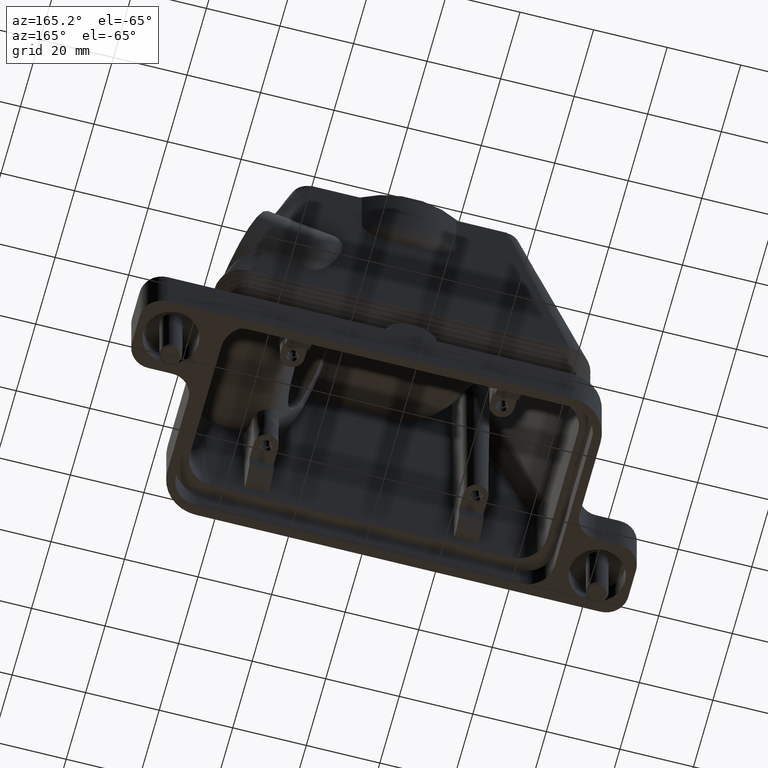
[diagram: clean part render]
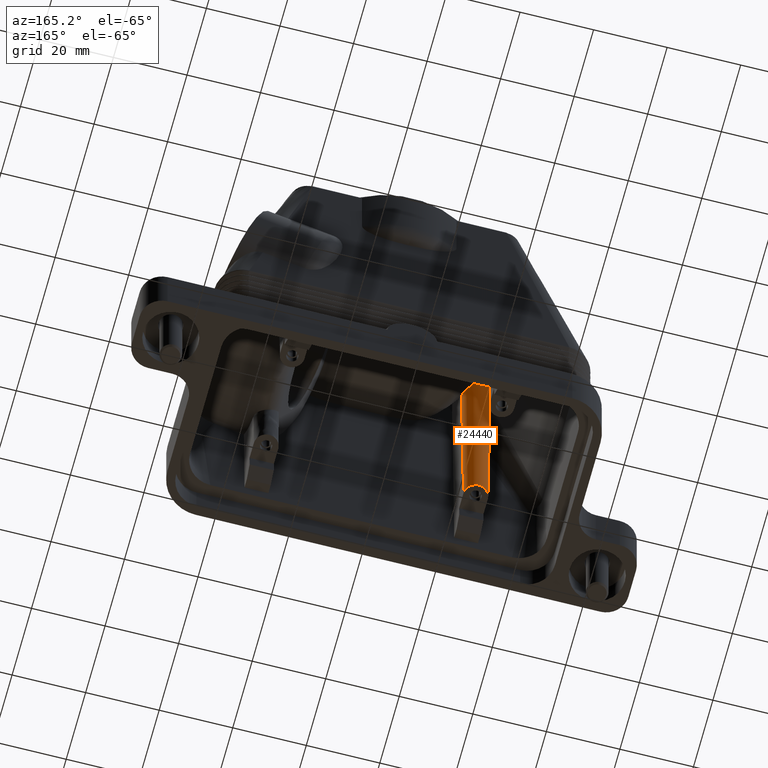
[diagram: same view with one face highlighted and labeled with its STEP entity id]
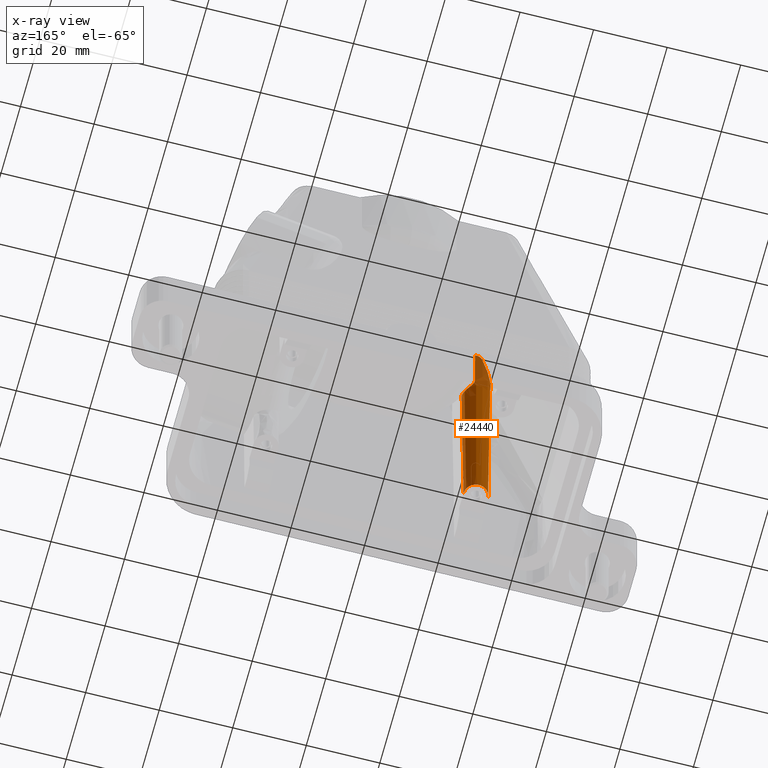
[diagram: x-ray of the same camera — body ghosted, the highlighted face saturated]
A machine part, auxiliary view. The second image highlights one B-rep face of the part: STEP entity #24440.
The next image is the same camera in x-ray: the body ghosted, the highlighted face saturated — about 12% of this face is hidden behind the body in this view.
In plain terms, the highlighted conical surface has half-angle 0.5 deg.
Its self-contained STEP definition (entity closure, byte-faithful):
#4811=CARTESIAN_POINT('',(-28.182178093102184,-9.517161097980543,97.425784668048621));
#4812=VERTEX_POINT('',#4811);
#4819=CARTESIAN_POINT('',(-27.339253843046620,-9.672910591317754,97.854749853687679));
#4820=VERTEX_POINT('',#4819);
#4830=CARTESIAN_POINT('',(-27.339253843046620,-9.672910591317754,97.854749853687679));
#4831=CARTESIAN_POINT('',(-27.433603181008660,-9.644572625008209,97.824272078642011));
#4832=CARTESIAN_POINT('',(-27.526090102079017,-9.620671139753370,97.789181397976620));
#4833=CARTESIAN_POINT('',(-27.800892895860642,-9.559380207145626,97.669478344377836));
#4834=CARTESIAN_POINT('',(-28.000992432428745,-9.530465131622529,97.557622558817542));
#4835=CARTESIAN_POINT('',(-28.182178093102184,-9.517161097980543,97.425784668048621));
#4836=B_SPLINE_CURVE_WITH_KNOTS('',3,(#4830,#4831,#4832,#4833,#4834,#4835),.UNSPECIFIED.,.F.,.U.,(4,2,4),(3.084516598273367,3.114259240925748,3.176299917802511),.UNSPECIFIED.);
#4837=EDGE_CURVE('',#4820,#4812,#4836,.T.);
#24140=CARTESIAN_POINT('',(-25.188911925464691,-13.500000000000000,18.999999999999996));
#24141=VERTEX_POINT('',#24140);
#24148=CARTESIAN_POINT('',(-24.662122134714242,-13.500000000000000,79.364131023995554));
#24149=VERTEX_POINT('',#24148);
#24150=CARTESIAN_POINT('',(-25.188911925464691,-13.500000000000000,18.999999999999996));
#24151=DIRECTION('',(0.008726535498374,0.0,0.999961923064171));
#24152=VECTOR('',#24151,60.366429592661362);
#24153=LINE('',#24150,#24152);
#24154=EDGE_CURVE('',#24141,#24149,#24153,.T.);
#24274=CARTESIAN_POINT('',(-31.811088074535313,-13.500000000000000,18.999999999999996));
#24275=VERTEX_POINT('',#24274);
#24282=CARTESIAN_POINT('',(-28.500000000000000,-13.500000000000000,18.999999999999996));
#24283=DIRECTION('',(0.0,0.0,1.0));
#24284=DIRECTION('',(1.0,0.0,0.0));
#24285=AXIS2_PLACEMENT_3D('',#24282,#24283,#24284);
#24286=CIRCLE('',#24285,3.311088074535312);
#24287=EDGE_CURVE('',#24141,#24275,#24286,.T.);
#24345=CARTESIAN_POINT('',(-32.398001384786241,-13.500000000000000,86.253603964578645));
#24346=VERTEX_POINT('',#24345);
#24353=CARTESIAN_POINT('',(-31.811088074535313,-13.500000000000000,18.999999999999996));
#24354=DIRECTION('',(-0.008726535498374,0.0,0.999961923064171));
#24355=VECTOR('',#24354,67.256164873252615);
#24356=LINE('',#24353,#24355);
#24357=EDGE_CURVE('',#24275,#24346,#24356,.T.);
#24381=CARTESIAN_POINT('',(-28.500000000000000,-13.500000000000000,12.0));
#24382=DIRECTION('',(0.0,0.0,1.0));
#24383=DIRECTION('',(1.0,0.0,0.0));
#24384=AXIS2_PLACEMENT_3D('',#24381,#24382,#24383);
#24385=CONICAL_SURFACE('',#24384,3.250000000000000,0.500000000000000);
#24386=ORIENTED_EDGE('',*,*,#24287,.T.);
#24387=ORIENTED_EDGE('',*,*,#24357,.T.);
#24388=CARTESIAN_POINT('',(-29.271578151614875,-9.593076188851722,95.922954170263296));
#24389=VERTEX_POINT('',#24388);
#24390=CARTESIAN_POINT('',(-28.391873351443820,-13.500000000000000,98.643690665637664));
#24391=DIRECTION('',(-0.951499144601332,0.0,0.307651390087764));
#24392=DIRECTION('',(-0.307651390087764,1.254607E-017,-0.951499144601332));
#24393=AXIS2_PLACEMENT_3D('',#24390,#24391,#24392);
#24394=ELLIPSE('',#24393,13.021647755921382,4.004668581468887);
#24395=EDGE_CURVE('',#24389,#24346,#24394,.T.);
#24396=ORIENTED_EDGE('',*,*,#24395,.F.);
#24397=CARTESIAN_POINT('',(-28.182178093102184,-9.517161097980543,97.425784668048621));
#24398=CARTESIAN_POINT('',(-28.300748266011659,-9.508454771202469,97.339508295810390));
#24399=CARTESIAN_POINT('',(-28.411507519584490,-9.505878955756806,97.245122704990081));
#24400=CARTESIAN_POINT('',(-28.785173674030709,-9.509848086931363,96.881764096714690));
#24401=CARTESIAN_POINT('',(-29.023479528806671,-9.543453828721182,96.540337976243791));
#24402=CARTESIAN_POINT('',(-29.215104256361158,-9.580755423721660,96.085577645407682));
#24403=CARTESIAN_POINT('',(-29.245128292417437,-9.587124929249104,96.004757858502785));
#24404=CARTESIAN_POINT('',(-29.271578151614875,-9.593076188851722,95.922954170263296));
#24405=B_SPLINE_CURVE_WITH_KNOTS('',3,(#24397,#24398,#24399,#24400,#24401,#24402,#24403,#24404),.UNSPECIFIED.,.F.,.U.,(4,2,2,4),(3.176299917802511,3.216900116280453,3.332666303087161,3.357136381606777),.UNSPECIFIED.);
#24406=EDGE_CURVE('',#4812,#24389,#24405,.T.);
#24407=ORIENTED_EDGE('',*,*,#24406,.F.);
#24408=ORIENTED_EDGE('',*,*,#4837,.F.);
#24409=CARTESIAN_POINT('',(-27.282636786548412,-9.831466318575048,82.500000000000014));
#24410=VERTEX_POINT('',#24409);
#24411=CARTESIAN_POINT('',(-27.339253843046620,-9.672910591317754,97.854749853687679));
#24412=CARTESIAN_POINT('',(-27.320948931756920,-9.724647099331454,92.790322810174388));
#24413=CARTESIAN_POINT('',(-27.301684241435481,-9.778609015650634,87.561181746300548));
#24414=CARTESIAN_POINT('',(-27.282636786548412,-9.831466318575048,82.500000000000014));
#24415=B_SPLINE_CURVE_WITH_KNOTS('',3,(#24411,#24412,#24413,#24414),.UNSPECIFIED.,.F.,.U.,(4,4),(0.969427987903859,2.372961597587206),.UNSPECIFIED.);
#24416=EDGE_CURVE('',#4820,#24410,#24415,.T.);
#24417=ORIENTED_EDGE('',*,*,#24416,.T.);
#24418=CARTESIAN_POINT('',(-24.662122134714242,-13.500000000000000,79.364131023995554));
#24419=CARTESIAN_POINT('',(-24.663205944533082,-13.339461317052129,79.239938719857449));
#24420=CARTESIAN_POINT('',(-24.674199807355595,-13.167368367444789,79.132772068437774));
#24421=CARTESIAN_POINT('',(-24.732511239162665,-12.749517311744988,78.929998306457435));
#24422=CARTESIAN_POINT('',(-24.789262293006207,-12.503240664537170,78.850499033725981));
#24423=CARTESIAN_POINT('',(-24.967653712898780,-11.985531744117955,78.762343745202202));
#24424=CARTESIAN_POINT('',(-25.092552255415139,-11.722260592661113,78.762582486454406));
#24425=CARTESIAN_POINT('',(-25.401295320573475,-11.223222596167940,78.858042553501264));
#24426=CARTESIAN_POINT('',(-25.582048407547433,-10.998034485825453,78.956276028158499));
#24427=CARTESIAN_POINT('',(-25.986277993118890,-10.584585461393816,79.265872783607293));
#24428=CARTESIAN_POINT('',(-26.211960128806737,-10.406976523615359,79.491922932668032));
#24429=CARTESIAN_POINT('',(-26.652348995669186,-10.117795541221577,80.093299581848584));
#24430=CARTESIAN_POINT('',(-26.855468335866568,-10.017709175349911,80.467922041453591));
#24431=CARTESIAN_POINT('',(-27.179865920162165,-9.872596130223755,81.383961878048282));
#24432=CARTESIAN_POINT('',(-27.280495302303859,-9.837409006566350,81.930976945067542));
#24433=CARTESIAN_POINT('',(-27.282636786548412,-9.831466318575048,82.500000000000014));
#24434=B_SPLINE_CURVE_WITH_KNOTS('',3,(#24418,#24419,#24420,#24421,#24422,#24423,#24424,#24425,#24426,#24427,#24428,#24429,#24430,#24431,#24432,#24433),.UNSPECIFIED.,.F.,.U.,(4,2,2,2,2,2,2,4),(-0.877444856166323,-0.797349304825455,-0.693033802817279,-0.578593049682153,-0.458539772846372,-0.320382880343769,-0.170954376653260,-0.000220418904072),.UNSPECIFIED.);
#24435=EDGE_CURVE('',#24149,#24410,#24434,.T.);
#24436=ORIENTED_EDGE('',*,*,#24435,.F.);
#24437=ORIENTED_EDGE('',*,*,#24154,.F.);
#24438=EDGE_LOOP('',(#24386,#24387,#24396,#24407,#24408,#24417,#24436,#24437));
#24439=FACE_OUTER_BOUND('',#24438,.T.);
#24440=ADVANCED_FACE('',(#24439),#24385,.T.);